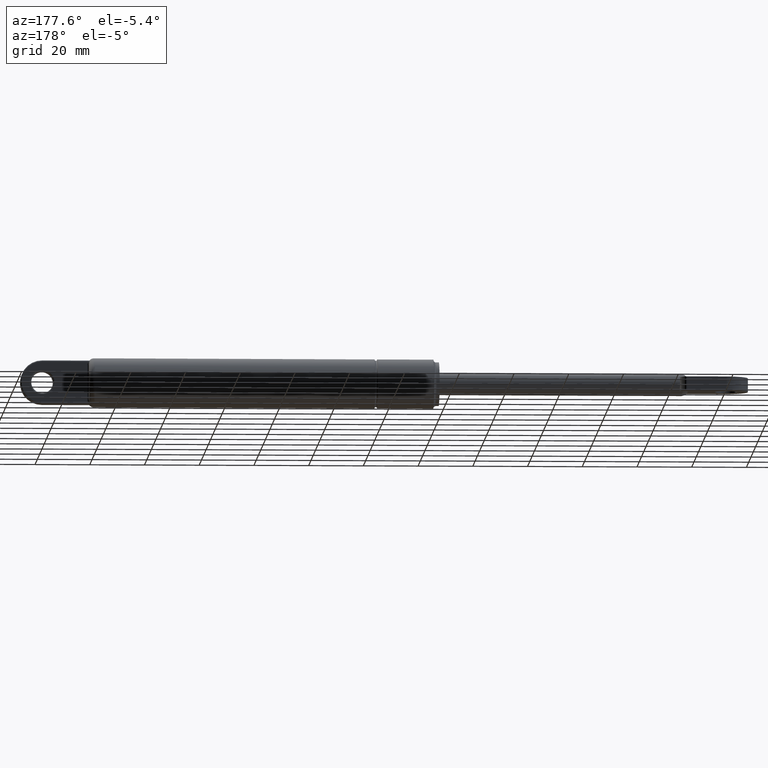
[diagram: clean part render]
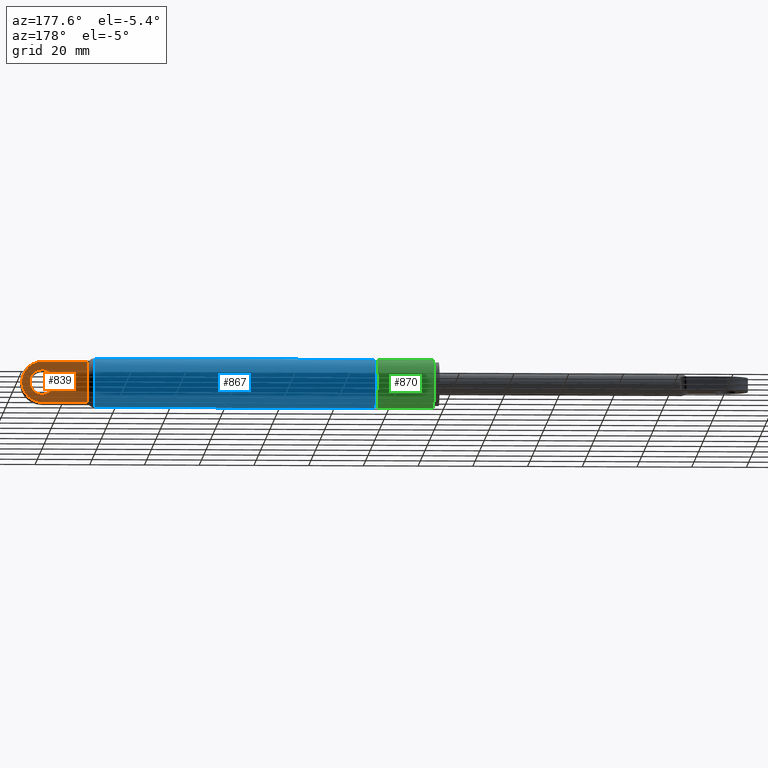
[diagram: same view with three faces highlighted in distinct colors, each labeled with its STEP entity id]
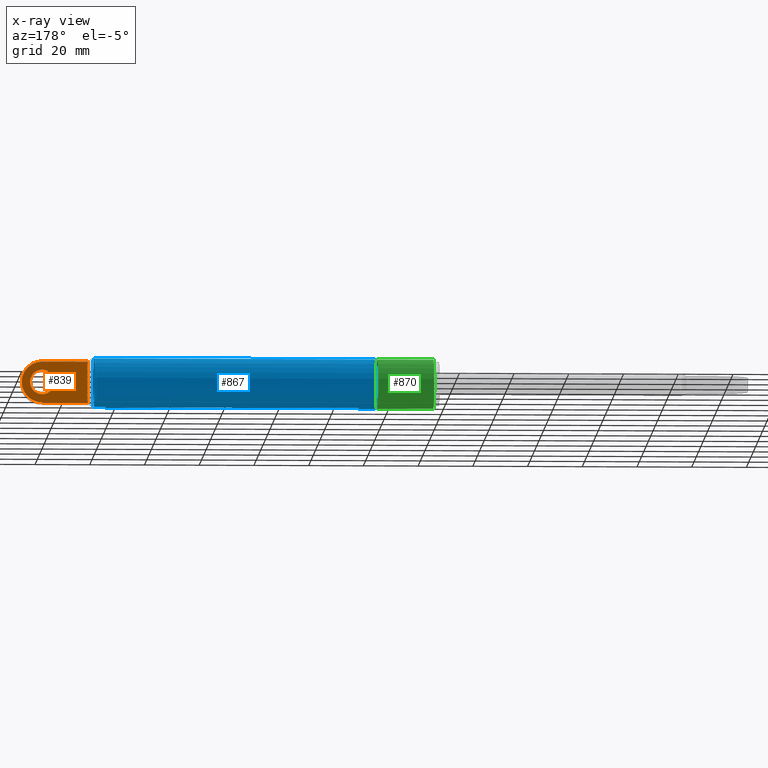
[diagram: x-ray of the same camera — body ghosted, the three highlighted faces saturated]
A machine part, auxiliary view with three faces highlighted in distinct colors.
The next image is the same camera in x-ray (body ghosted, the three faces saturated) — at least one of them is partly hidden behind the body in this view.
Their STEP definitions:

[orange] entity #839 — the highlighted planar face has unit normal (0, -1, 0).
#55=B_SPLINE_CURVE_WITH_KNOTS('',3,(#1273,#1274,#1275,#1276),
 .UNSPECIFIED.,.F.,.F.,(4,4),(-0.458753506146987,-0.337946859791609),
 .UNSPECIFIED.);
#56=B_SPLINE_CURVE_WITH_KNOTS('',3,(#1280,#1281,#1282,#1283),
 .UNSPECIFIED.,.F.,.F.,(4,4),(-0.120806646377569,-1.65297027449887E-18),
 .UNSPECIFIED.);
#83=LINE('',#1271,#116);
#84=LINE('',#1278,#117);
#85=LINE('',#1285,#118);
#116=VECTOR('',#1022,16.7442382770954);
#117=VECTOR('',#1023,12.6491106406735);
#118=VECTOR('',#1024,16.7442382772499);
#149=PLANE('',#905);
#193=FACE_BOUND('',#280,.T.);
#218=FACE_OUTER_BOUND('',#279,.T.);
#279=EDGE_LOOP('',(#608,#609,#610,#611,#612,#613));
#280=EDGE_LOOP('',(#614));
#360=CIRCLE('',#902,4.5);
#362=CIRCLE('',#906,7.50000000000001);
#413=VERTEX_POINT('',#1263);
#415=VERTEX_POINT('',#1269);
#416=VERTEX_POINT('',#1270);
#417=VERTEX_POINT('',#1272);
#418=VERTEX_POINT('',#1277);
#419=VERTEX_POINT('',#1279);
#420=VERTEX_POINT('',#1284);
#492=EDGE_CURVE('',#413,#413,#360,.T.);
#494=EDGE_CURVE('',#415,#416,#83,.T.);
#495=EDGE_CURVE('',#417,#415,#55,.T.);
#496=EDGE_CURVE('',#418,#417,#84,.T.);
#497=EDGE_CURVE('',#419,#418,#56,.T.);
#498=EDGE_CURVE('',#420,#419,#85,.T.);
#499=EDGE_CURVE('',#416,#420,#362,.T.);
#608=ORIENTED_EDGE('',*,*,#494,.F.);
#609=ORIENTED_EDGE('',*,*,#495,.F.);
#610=ORIENTED_EDGE('',*,*,#496,.F.);
#611=ORIENTED_EDGE('',*,*,#497,.F.);
#612=ORIENTED_EDGE('',*,*,#498,.F.);
#613=ORIENTED_EDGE('',*,*,#499,.F.);
#614=ORIENTED_EDGE('',*,*,#492,.F.);
#839=ADVANCED_FACE('',(#218,#193),#149,.F.);
#902=AXIS2_PLACEMENT_3D('',#1264,#1014,#1015);
#905=AXIS2_PLACEMENT_3D('',#1268,#1020,#1021);
#906=AXIS2_PLACEMENT_3D('',#1286,#1025,#1026);
#1014=DIRECTION('center_axis',(0.,1.,0.));
#1015=DIRECTION('ref_axis',(1.,0.,0.));
#1020=DIRECTION('center_axis',(0.,-1.,0.));
#1021=DIRECTION('ref_axis',(0.,0.,-1.));
#1022=DIRECTION('',(1.,0.,-1.30614473485313E-16));
#1023=DIRECTION('',(0.,0.,-1.));
#1024=DIRECTION('',(-1.,0.,-1.30614473485313E-16));
#1025=DIRECTION('center_axis',(0.,-1.,0.));
#1026=DIRECTION('ref_axis',(1.,0.,5.05321549807431E-16));
#1263=CARTESIAN_POINT('',(140.496093690394,2.5,4.87028123019184E-15));
#1264=CARTESIAN_POINT('Origin',(144.996093690394,2.5,4.31919017057553E-15));
#1268=CARTESIAN_POINT('Origin',(138.242238212688,2.5,1.20940107357813E-15));
#1269=CARTESIAN_POINT('',(128.251855413298,2.5,-7.49999999982591));
#1270=CARTESIAN_POINT('',(144.996093690394,2.5,-7.50000000000002));
#1271=CARTESIAN_POINT('',(141.619165951541,2.5,-7.5));
#1272=CARTESIAN_POINT('',(128.496093690394,2.5,-6.32455532033677));
#1273=CARTESIAN_POINT('Ctrl Pts',(128.496093690394,2.5,-6.32455532033677));
#1274=CARTESIAN_POINT('Ctrl Pts',(128.496093690394,2.5,-6.72724414152136));
#1275=CARTESIAN_POINT('Ctrl Pts',(128.412952168734,2.5,-7.13150224897532));
#1276=CARTESIAN_POINT('Ctrl Pts',(128.250523258087,2.5,-7.49941186085851));
#1277=CARTESIAN_POINT('',(128.496093690394,2.5,6.32455532033677));
#1278=CARTESIAN_POINT('',(128.496093690394,2.5,2.25));
#1279=CARTESIAN_POINT('',(128.251855413144,2.5,7.5));
#1280=CARTESIAN_POINT('Ctrl Pts',(128.250523257998,2.5,7.49941186106128));
#1281=CARTESIAN_POINT('Ctrl Pts',(128.412952168704,2.5,7.13150224912385));
#1282=CARTESIAN_POINT('Ctrl Pts',(128.496093690394,2.5,6.72724414159533));
#1283=CARTESIAN_POINT('Ctrl Pts',(128.496093690394,2.5,6.32455532033677));
#1284=CARTESIAN_POINT('',(144.996093690394,2.5,7.5));
#1285=CARTESIAN_POINT('',(133.119165951541,2.5,7.5));
#1286=CARTESIAN_POINT('Origin',(144.996093690394,2.5,-4.31919017057553E-15));

[blue] entity #867 — the highlighted cylindrical surface (bore or boss wall) has radius 9 mm, axis along (-1, 0, 0).
#177=CYLINDRICAL_SURFACE('',#950,9.00000000000001);
#200=FACE_BOUND('',#315,.T.);
#246=FACE_OUTER_BOUND('',#314,.T.);
#314=EDGE_LOOP('',(#727));
#315=EDGE_LOOP('',(#728));
#375=CIRCLE('',#930,9.00000000000001);
#382=CIRCLE('',#943,9.00000000000001);
#448=VERTEX_POINT('',#1542);
#449=VERTEX_POINT('',#1657);
#540=EDGE_CURVE('',#448,#448,#375,.T.);
#550=EDGE_CURVE('',#449,#449,#382,.T.);
#727=ORIENTED_EDGE('',*,*,#550,.F.);
#728=ORIENTED_EDGE('',*,*,#540,.F.);
#867=ADVANCED_FACE('',(#246,#200),#177,.T.);
#930=AXIS2_PLACEMENT_3D('',#1543,#1083,#1084);
#943=AXIS2_PLACEMENT_3D('',#1658,#1110,#1111);
#950=AXIS2_PLACEMENT_3D('',#1669,#1124,#1125);
#1083=DIRECTION('center_axis',(1.,0.,0.));
#1084=DIRECTION('ref_axis',(0.,1.22464679914735E-16,-1.));
#1110=DIRECTION('center_axis',(-1.,0.,0.));
#1111=DIRECTION('ref_axis',(0.,0.,1.));
#1124=DIRECTION('center_axis',(-1.,0.,0.));
#1125=DIRECTION('ref_axis',(0.,0.,1.));
#1542=CARTESIAN_POINT('',(125.996093690394,-2.20436423846524E-15,9.00000000000001));
#1543=CARTESIAN_POINT('Origin',(125.996093690394,0.,0.));
#1657=CARTESIAN_POINT('',(23.5,0.,9.00000000000001));
#1658=CARTESIAN_POINT('Origin',(23.5,0.,0.));
#1669=CARTESIAN_POINT('Origin',(75.7480468451968,0.,0.));

[green] entity #870 — the highlighted cylindrical surface (bore or boss wall) has radius 9 mm, axis along (-1, 0, 0).
#179=CYLINDRICAL_SURFACE('',#955,9.00000000000001);
#202=FACE_BOUND('',#320,.T.);
#249=FACE_OUTER_BOUND('',#319,.T.);
#319=EDGE_LOOP('',(#732));
#320=EDGE_LOOP('',(#733));
#383=CIRCLE('',#944,9.00000000000001);
#384=CIRCLE('',#946,9.);
#450=VERTEX_POINT('',#1659);
#451=VERTEX_POINT('',#1662);
#551=EDGE_CURVE('',#450,#450,#383,.T.);
#552=EDGE_CURVE('',#451,#451,#384,.T.);
#732=ORIENTED_EDGE('',*,*,#552,.F.);
#733=ORIENTED_EDGE('',*,*,#551,.T.);
#870=ADVANCED_FACE('',(#249,#202),#179,.T.);
#944=AXIS2_PLACEMENT_3D('',#1660,#1112,#1113);
#946=AXIS2_PLACEMENT_3D('',#1663,#1116,#1117);
#955=AXIS2_PLACEMENT_3D('',#1676,#1134,#1135);
#1112=DIRECTION('center_axis',(-1.,0.,0.));
#1113=DIRECTION('ref_axis',(0.,0.,1.));
#1116=DIRECTION('center_axis',(-1.,0.,0.));
#1117=DIRECTION('ref_axis',(0.,0.,1.));
#1134=DIRECTION('center_axis',(-1.,0.,0.));
#1135=DIRECTION('ref_axis',(0.,0.,1.));
#1659=CARTESIAN_POINT('',(22.5,0.,9.00000000000001));
#1660=CARTESIAN_POINT('Origin',(22.5,0.,0.));
#1662=CARTESIAN_POINT('',(1.99999999999999,0.,9.));
#1663=CARTESIAN_POINT('Origin',(1.99999999999999,0.,0.));
#1676=CARTESIAN_POINT('Origin',(12.25,0.,0.));